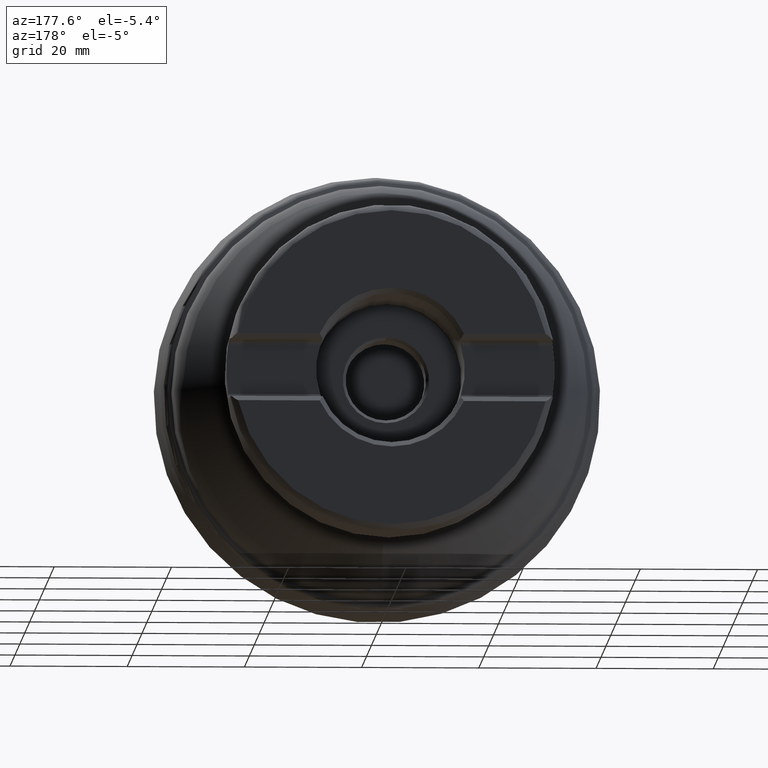
[diagram: clean part render]
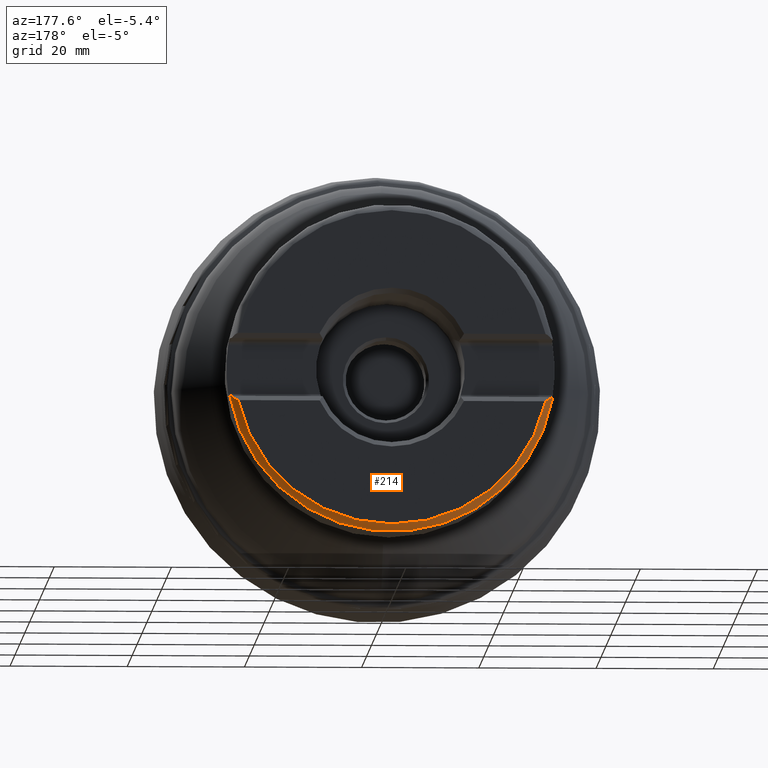
[diagram: same view with one face highlighted and labeled with its STEP entity id]
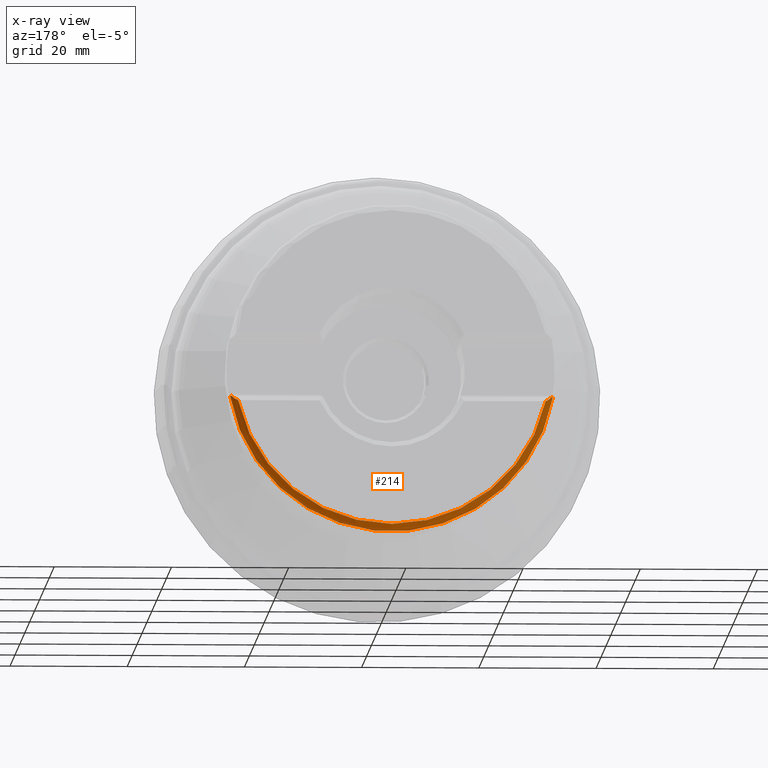
[diagram: x-ray of the same camera — body ghosted, the highlighted face saturated]
A machine part, auxiliary view. The second image highlights one B-rep face of the part: STEP entity #214.
The next image is the same camera in x-ray: the body ghosted, the highlighted face saturated — about 0% of this face is hidden behind the body in this view.
In plain terms, the highlighted toroidal blend (fillet) surface has major radius 26 mm and minor (blend) radius 2 mm.
Its self-contained STEP definition (entity closure, byte-faithful):
#179=TOROIDAL_SURFACE('',#1099,26.,2.);
#189=FACE_OUTER_BOUND('',#493,.T.);
#214=ADVANCED_FACE('',(#189),#179,.T.);
#297=B_SPLINE_CURVE_WITH_KNOTS('',3,(#1544,#1545,#1546,#1547,#1548,#1549,
#1550,#1551,#1552,#1553),.UNSPECIFIED.,.F.,.F.,(4,3,3,4),(0.,0.205787571339342,
0.588022367024049,1.),.UNSPECIFIED.);
#298=B_SPLINE_CURVE_WITH_KNOTS('',3,(#1555,#1556,#1557,#1558,#1559,#1560,
#1561),.UNSPECIFIED.,.F.,.F.,(4,3,4),(0.,0.655563620107922,1.),
 .UNSPECIFIED.);
#299=B_SPLINE_CURVE_WITH_KNOTS('',3,(#1565,#1566,#1567,#1568,#1569,#1570,
#1571),.UNSPECIFIED.,.F.,.F.,(4,3,4),(0.,0.66214357795885,1.),
 .UNSPECIFIED.);
#300=B_SPLINE_CURVE_WITH_KNOTS('',3,(#1573,#1574,#1575,#1576,#1577,#1578,
#1579,#1580,#1581,#1582),.UNSPECIFIED.,.F.,.F.,(4,3,3,4),(0.,0.0358768437479956,
0.68147638430458,1.),.UNSPECIFIED.);
#493=EDGE_LOOP('',(#620,#621,#622,#623,#624,#625));
#620=ORIENTED_EDGE('',*,*,#934,.T.);
#621=ORIENTED_EDGE('',*,*,#935,.T.);
#622=ORIENTED_EDGE('',*,*,#936,.F.);
#623=ORIENTED_EDGE('',*,*,#937,.T.);
#624=ORIENTED_EDGE('',*,*,#938,.T.);
#625=ORIENTED_EDGE('',*,*,#933,.F.);
#833=VERTEX_POINT('',#1461);
#843=VERTEX_POINT('',#1541);
#844=VERTEX_POINT('',#1554);
#845=VERTEX_POINT('',#1562);
#846=VERTEX_POINT('',#1564);
#847=VERTEX_POINT('',#1572);
#933=EDGE_CURVE('',#843,#833,#1037,.T.);
#934=EDGE_CURVE('',#843,#844,#297,.T.);
#935=EDGE_CURVE('',#844,#845,#298,.T.);
#936=EDGE_CURVE('',#846,#845,#1038,.T.);
#937=EDGE_CURVE('',#846,#847,#299,.T.);
#938=EDGE_CURVE('',#847,#833,#300,.T.);
#1037=CIRCLE('',#1096,28.);
#1038=CIRCLE('',#1098,26.8717797887081);
#1096=AXIS2_PLACEMENT_3D('',#1542,#1209,#1210);
#1098=AXIS2_PLACEMENT_3D('',#1563,#1213,#1214);
#1099=AXIS2_PLACEMENT_3D('',#1583,#1215,#1216);
#1209=DIRECTION('',(0.,-1.,0.));
#1210=DIRECTION('',(0.,0.,-1.));
#1213=DIRECTION('',(0.,1.,0.));
#1214=DIRECTION('',(0.,0.,-1.));
#1215=DIRECTION('',(0.,-1.,0.));
#1216=DIRECTION('',(0.,0.,-1.));
#1461=CARTESIAN_POINT('',(27.5562837661394,61.199999999997,-4.965));
#1541=CARTESIAN_POINT('',(-27.5562837661394,61.199999999997,-4.965));
#1542=CARTESIAN_POINT('',(0.,61.199999999997,0.));
#1544=CARTESIAN_POINT('',(-27.5562837661394,61.199999999997,-4.965));
#1545=CARTESIAN_POINT('',(-27.5562837661394,61.2718922110575,-4.965));
#1546=CARTESIAN_POINT('',(-27.5523328117469,61.3438919824269,-4.965));
#1547=CARTESIAN_POINT('',(-27.5444684455408,61.415352753171,-4.965));
#1548=CARTESIAN_POINT('',(-27.5298222663354,61.5484375087699,-4.965));
#1549=CARTESIAN_POINT('',(-27.5013844494333,61.6806946624648,-4.965));
#1550=CARTESIAN_POINT('',(-27.4600812291869,61.8080528453012,-4.965));
#1551=CARTESIAN_POINT('',(-27.4158959691372,61.9442977771614,-4.965));
#1552=CARTESIAN_POINT('',(-27.3564692755609,62.0764689054872,-4.965));
#1553=CARTESIAN_POINT('',(-27.2839772942593,62.1999999999947,-4.965));
#1554=CARTESIAN_POINT('',(-27.2839772942593,62.1999999999947,-4.965));
#1555=CARTESIAN_POINT('',(-27.2839772942593,62.1999999999947,-4.965));
#1556=CARTESIAN_POINT('',(-27.1229092803043,62.4095038910558,-5.1745038910611));
#1557=CARTESIAN_POINT('',(-26.9169716709263,62.6058678889158,-5.37086788891875));
#1558=CARTESIAN_POINT('',(-26.6715654325133,62.7694258969846,-5.53442589698758));
#1559=CARTESIAN_POINT('',(-26.5415353179654,62.8560881866719,-5.62108818667487));
#1560=CARTESIAN_POINT('',(-26.3989059798787,62.9345160349011,-5.69951603490405));
#1561=CARTESIAN_POINT('',(-26.2460915949941,62.999999999997,-5.765));
#1562=CARTESIAN_POINT('',(-26.2460915949941,62.999999999997,-5.765));
#1563=CARTESIAN_POINT('',(0.,62.999999999997,0.));
#1564=CARTESIAN_POINT('',(26.2460915949941,62.999999999997,-5.765));
#1565=CARTESIAN_POINT('',(26.2460915949941,62.999999999997,-5.765));
#1566=CARTESIAN_POINT('',(26.5367906320348,62.8754297534893,-5.64042975349231));
#1567=CARTESIAN_POINT('',(26.7912687778165,62.7036635557715,-5.46866355577444));
#1568=CARTESIAN_POINT('',(26.9978153559694,62.5127710024599,-5.27777100246285));
#1569=CARTESIAN_POINT('',(27.1045218200768,62.4141517487764,-5.17915174877939));
#1570=CARTESIAN_POINT('',(27.2001047668262,62.3090944155706,-5.07409441557362));
#1571=CARTESIAN_POINT('',(27.2839772942579,62.199999999997,-4.965));
#1572=CARTESIAN_POINT('',(27.2839772942579,62.199999999997,-4.965));
#1573=CARTESIAN_POINT('',(27.2839772942579,62.199999999997,-4.965));
#1574=CARTESIAN_POINT('',(27.2903743008118,62.1890990809301,-4.965));
#1575=CARTESIAN_POINT('',(27.2966677935121,62.1781367513488,-4.965));
#1576=CARTESIAN_POINT('',(27.3028559799363,62.1671159492847,-4.965));
#1577=CARTESIAN_POINT('',(27.4127692624149,61.9713667511543,-4.965));
#1578=CARTESIAN_POINT('',(27.4901285527143,61.7536565200662,-4.965));
#1579=CARTESIAN_POINT('',(27.5280227401341,61.5323813321357,-4.965));
#1580=CARTESIAN_POINT('',(27.546791803173,61.4227833110673,-4.965));
#1581=CARTESIAN_POINT('',(27.5562837661394,61.3111935427477,-4.965));
#1582=CARTESIAN_POINT('',(27.5562837661394,61.199999999997,-4.965));
#1583=CARTESIAN_POINT('',(0.,61.199999999997,0.));